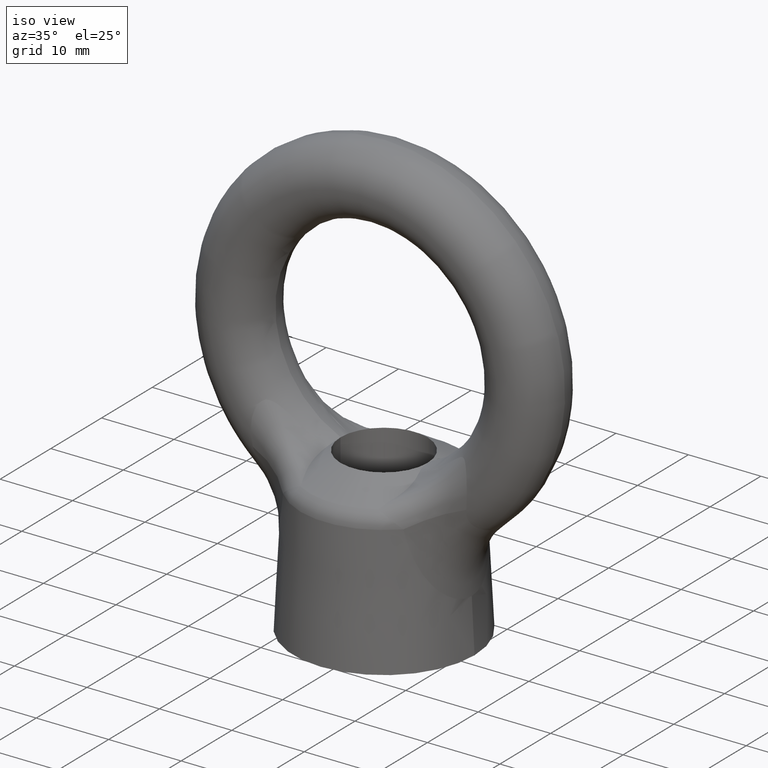
[diagram: clean part render]
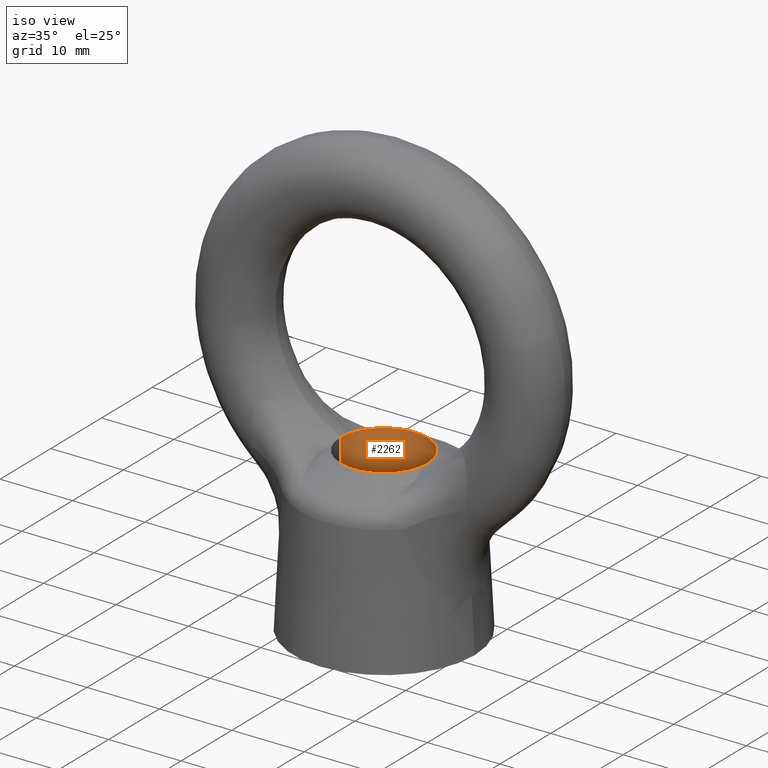
[diagram: same view with one face highlighted and labeled with its STEP entity id]
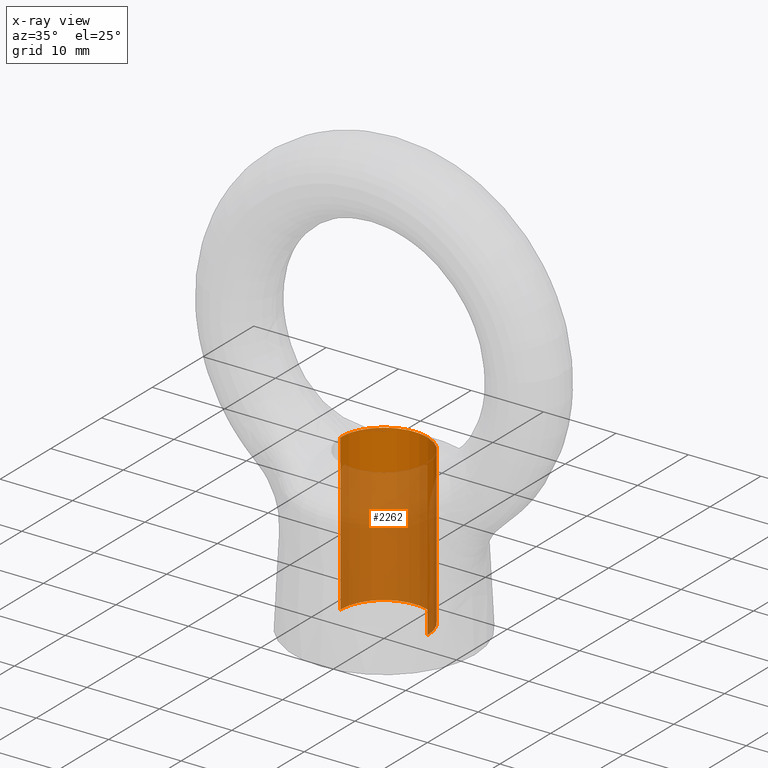
[diagram: x-ray of the same camera — body ghosted, the highlighted face saturated]
A machine part, iso view. The second image highlights one B-rep face of the part: STEP entity #2262.
The next image is the same camera in x-ray: the body ghosted, the highlighted face saturated — about 76% of this face is hidden behind the body in this view.
In plain terms, the highlighted cylindrical surface (partial cylindrical patch) has radius 6 mm, axis along (0, 0, -1).
Its self-contained STEP definition (entity closure, byte-faithful):
#1948 = VERTEX_POINT ( 'NONE', #2051 ) ;
#1958 = VERTEX_POINT ( 'NONE', #2597 ) ;
#1959 = VERTEX_POINT ( 'NONE', #2596 ) ;
#1979 = EDGE_CURVE ( 'NONE', #1984, #1958, #2706, .T. ) ;
#1984 = VERTEX_POINT ( 'NONE', #2675 ) ;
#1995 = EDGE_CURVE ( 'NONE', #1948, #1959, #2732, .T. ) ;
#2001 = EDGE_CURVE ( 'NONE', #1948, #1984, #2721, .T. ) ;
#2051 = CARTESIAN_POINT ( 'NONE',  ( -6.000000000000000000, 0.0000000000000000000, -13.74772600000000000 ) ) ;
#2184 = ORIENTED_EDGE ( 'NONE', *, *, #1979, .F. ) ;
#2185 = ORIENTED_EDGE ( 'NONE', *, *, #2001, .F. ) ;
#2186 = ORIENTED_EDGE ( 'NONE', *, *, #1995, .T. ) ;
#2187 = ORIENTED_EDGE ( 'NONE', *, *, #2188, .T. ) ;
#2188 = EDGE_CURVE ( 'NONE', #1959, #1958, #13503, .T. ) ;
#2262 = ADVANCED_FACE ( 'NONE', ( #2578 ), #2573, .F. ) ;
#2263 = EDGE_LOOP ( 'NONE', ( #2184, #2185, #2186, #2187 ) ) ;
#2569 = DIRECTION ( 'NONE',  ( -1.000000000000000000, 0.0000000000000000000, 0.0000000000000000000 ) ) ;
#2570 = DIRECTION ( 'NONE',  ( 0.0000000000000000000, 0.0000000000000000000, -1.000000000000000000 ) ) ;
#2571 = CARTESIAN_POINT ( 'NONE',  ( 0.0000000000000000000, 0.0000000000000000000, 963.9999880000000300 ) ) ;
#2572 = AXIS2_PLACEMENT_3D ( 'NONE', #2571, #2570, #2569 ) ;
#2573 = CYLINDRICAL_SURFACE ( 'NONE', #2572, 6.000000000000000000 ) ;
#2578 = FACE_OUTER_BOUND ( 'NONE', #2263, .T. ) ;
#2596 = CARTESIAN_POINT ( 'NONE',  ( -6.000000000000000000, 0.0000000000000000000, -35.25001200000019700 ) ) ;
#2597 = CARTESIAN_POINT ( 'NONE',  ( 6.000000000000000000, 7.347638122934263500E-016, -35.25001200000019700 ) ) ;
#2675 = CARTESIAN_POINT ( 'NONE',  ( 6.000000000000000000, 0.0000000000000000000, -13.74772599999995900 ) ) ;
#2703 = DIRECTION ( 'NONE',  ( 0.0000000000000000000, 0.0000000000000000000, -1.000000000000000000 ) ) ;
#2704 = VECTOR ( 'NONE', #2703, 1000.000000000000000 ) ;
#2705 = CARTESIAN_POINT ( 'NONE',  ( 6.000000000000000000, 7.347638122934263500E-016, 963.9999880000000300 ) ) ;
#2706 = LINE ( 'NONE', #2705, #2704 ) ;
#2717 = DIRECTION ( 'NONE',  ( -1.000000000000000000, 0.0000000000000000000, 0.0000000000000000000 ) ) ;
#2718 = DIRECTION ( 'NONE',  ( 0.0000000000000000000, 0.0000000000000000000, -1.000000000000000000 ) ) ;
#2719 = CARTESIAN_POINT ( 'NONE',  ( 0.0000000000000000000, 0.0000000000000000000, -13.74772600000000000 ) ) ;
#2720 = AXIS2_PLACEMENT_3D ( 'NONE', #2719, #2718, #2717 ) ;
#2721 = CIRCLE ( 'NONE', #2720, 6.000000000000000000 ) ;
#2729 = DIRECTION ( 'NONE',  ( 0.0000000000000000000, 0.0000000000000000000, -1.000000000000000000 ) ) ;
#2730 = VECTOR ( 'NONE', #2729, 1000.000000000000000 ) ;
#2731 = CARTESIAN_POINT ( 'NONE',  ( -6.000000000000000000, 0.0000000000000000000, 963.9999880000000300 ) ) ;
#2732 = LINE ( 'NONE', #2731, #2730 ) ;
#13499 = DIRECTION ( 'NONE',  ( -1.000000000000000000, 0.0000000000000000000, 0.0000000000000000000 ) ) ;
#13500 = DIRECTION ( 'NONE',  ( 0.0000000000000000000, 0.0000000000000000000, -1.000000000000000000 ) ) ;
#13501 = CARTESIAN_POINT ( 'NONE',  ( 0.0000000000000000000, 0.0000000000000000000, -35.25001200000019700 ) ) ;
#13502 = AXIS2_PLACEMENT_3D ( 'NONE', #13501, #13500, #13499 ) ;
#13503 = CIRCLE ( 'NONE', #13502, 6.000000000000000000 ) ;